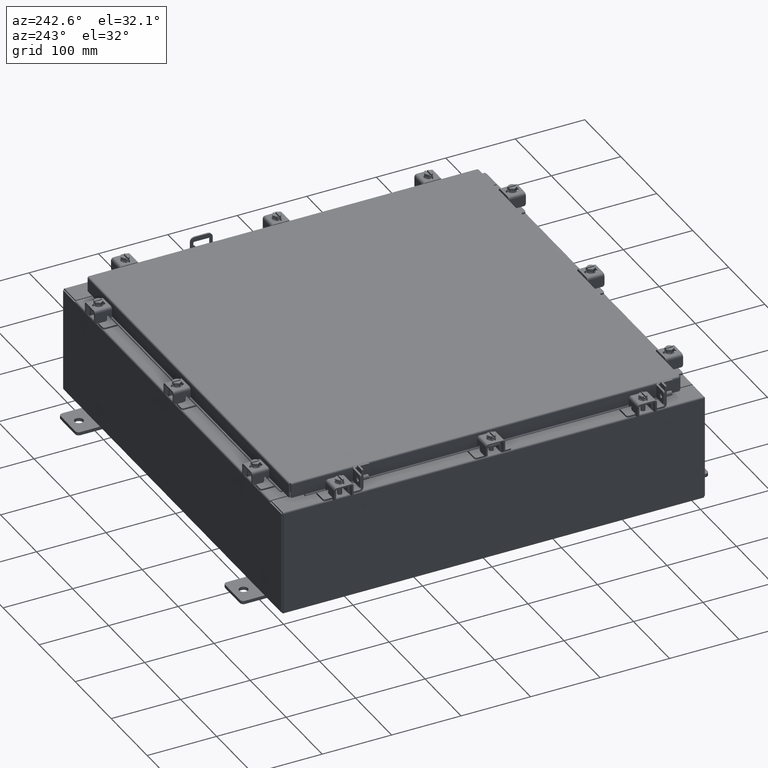
[diagram: clean part render]
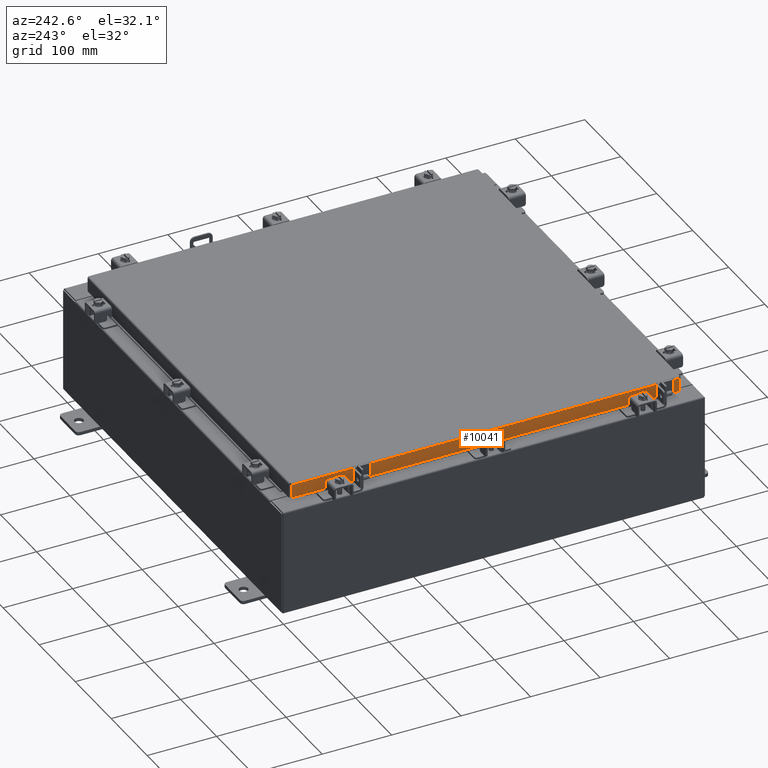
[diagram: same view with one face highlighted and labeled with its STEP entity id]
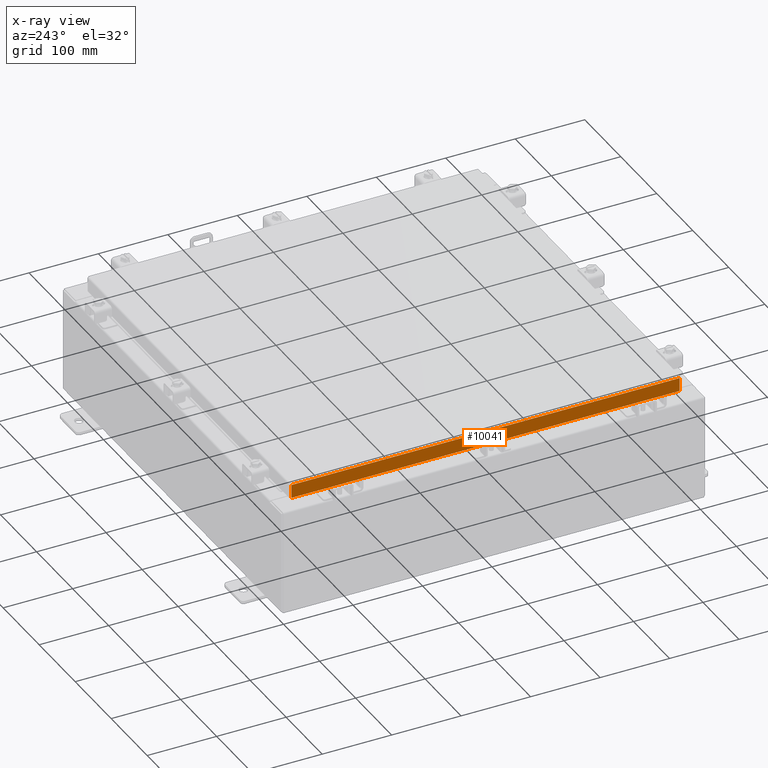
[diagram: x-ray of the same camera — body ghosted, the highlighted face saturated]
A machine part, auxiliary view. The second image highlights one B-rep face of the part: STEP entity #10041.
The next image is the same camera in x-ray: the body ghosted, the highlighted face saturated — about 0% of this face is hidden behind the body in this view.
In plain terms, the highlighted planar face has unit normal (1, 0, -0).
Its self-contained STEP definition (entity closure, byte-faithful):
#916 = LINE ( 'NONE', #7967, #5005 ) ;
#1404 = VECTOR ( 'NONE', #18119, 39.37007874015748100 ) ;
#1466 = ORIENTED_EDGE ( 'NONE', *, *, #3602, .F. ) ;
#1750 = CARTESIAN_POINT ( 'NONE',  ( -11.09399999999999800, -10.25515786437626000, -0.8500000000000020900 ) ) ;
#1959 = VERTEX_POINT ( 'NONE', #20543 ) ;
#2066 = PLANE ( 'NONE',  #6980 ) ;
#2837 = CARTESIAN_POINT ( 'NONE',  ( -11.09400000000000700, -11.09400000000000100, -0.8499999999999999800 ) ) ;
#3466 = LINE ( 'NONE', #2837, #8091 ) ;
#3602 = EDGE_CURVE ( 'NONE', #18702, #6368, #8950, .T. ) ;
#3784 = DIRECTION ( 'NONE',  ( 1.000000000000000000, 3.297150052053607500E-031, -2.818880942772360100E-015 ) ) ;
#5005 = VECTOR ( 'NONE', #21936, 39.37007874015748100 ) ;
#5069 = EDGE_CURVE ( 'NONE', #16119, #18702, #3466, .T. ) ;
#5185 = FACE_OUTER_BOUND ( 'NONE', #19777, .T. ) ;
#6368 = VERTEX_POINT ( 'NONE', #17962 ) ;
#6398 = EDGE_CURVE ( 'NONE', #16034, #1959, #14700, .T. ) ;
#6980 = AXIS2_PLACEMENT_3D ( 'NONE', #14235, #3784, #15986 ) ;
#7141 = ORIENTED_EDGE ( 'NONE', *, *, #6398, .T. ) ;
#7967 = CARTESIAN_POINT ( 'NONE',  ( -11.09400000000000700, -11.09400000000000100, -0.8499999999999999800 ) ) ;
#7981 = CARTESIAN_POINT ( 'NONE',  ( -11.09400000000000300, -11.09400000000000100, -0.08770000000000026400 ) ) ;
#8091 = VECTOR ( 'NONE', #15027, 39.37007874015748100 ) ;
#8947 = CARTESIAN_POINT ( 'NONE',  ( -11.09400000000000700, -11.00515786437626400, -0.8499999999999999800 ) ) ;
#8950 = LINE ( 'NONE', #1750, #18228 ) ;
#9022 = CARTESIAN_POINT ( 'NONE',  ( -11.09399999999999800, -10.25515786437626400, -0.8500000000000020900 ) ) ;
#9219 = ORIENTED_EDGE ( 'NONE', *, *, #15005, .F. ) ;
#9341 = CARTESIAN_POINT ( 'NONE',  ( -11.09400000000000300, -11.00515786437626900, -0.07470000000000015500 ) ) ;
#9432 = CARTESIAN_POINT ( 'NONE',  ( -11.09400000000000300, 11.00515786437626400, 1.081811805491048200E-013 ) ) ;
#10013 = EDGE_CURVE ( 'NONE', #18294, #16119, #19602, .T. ) ;
#10041 = ADVANCED_FACE ( 'NONE', ( #5185 ), #2066, .F. ) ;
#11091 = DIRECTION ( 'NONE',  ( -2.818880942772360100E-015, 6.982962677686267500E-015, -1.000000000000000000 ) ) ;
#11316 = ORIENTED_EDGE ( 'NONE', *, *, #10013, .F. ) ;
#11386 = DIRECTION ( 'NONE',  ( 3.297150052053608400E-031, -1.000000000000000000, -8.987264781119276500E-046 ) ) ;
#12673 = EDGE_CURVE ( 'NONE', #16034, #18294, #20924, .T. ) ;
#13888 = DIRECTION ( 'NONE',  ( -0.0000000000000000000, 1.000000000000000000, -0.0000000000000000000 ) ) ;
#14235 = CARTESIAN_POINT ( 'NONE',  ( -11.09400000000000300, 0.0000000000000000000, 3.168943672650545400E-014 ) ) ;
#14700 = LINE ( 'NONE', #9432, #1404 ) ;
#14977 = VECTOR ( 'NONE', #11091, 39.37007874015748100 ) ;
#15005 = EDGE_CURVE ( 'NONE', #6368, #1959, #916, .T. ) ;
#15027 = DIRECTION ( 'NONE',  ( 4.379057701015054300E-047, 1.000000000000000000, 1.169666303398706800E-016 ) ) ;
#15063 = ORIENTED_EDGE ( 'NONE', *, *, #5069, .F. ) ;
#15986 = DIRECTION ( 'NONE',  ( -2.818880942772360100E-015, 0.0000000000000000000, -1.000000000000000000 ) ) ;
#16034 = VERTEX_POINT ( 'NONE', #17213 ) ;
#16119 = VERTEX_POINT ( 'NONE', #8947 ) ;
#17213 = CARTESIAN_POINT ( 'NONE',  ( -11.09400000000000300, 11.00515786437626400, -0.08770000000000026400 ) ) ;
#17962 = CARTESIAN_POINT ( 'NONE',  ( -11.09399999999999800, 10.25515786437626000, -0.8500000000000020900 ) ) ;
#18106 = CARTESIAN_POINT ( 'NONE',  ( -11.09400000000000300, -11.00515786437626900, -0.08770000000000026400 ) ) ;
#18119 = DIRECTION ( 'NONE',  ( -2.818880942772360100E-015, 6.982962677686267500E-015, -1.000000000000000000 ) ) ;
#18228 = VECTOR ( 'NONE', #13888, 39.37007874015748100 ) ;
#18294 = VERTEX_POINT ( 'NONE', #18106 ) ;
#18702 = VERTEX_POINT ( 'NONE', #9022 ) ;
#19602 = LINE ( 'NONE', #9341, #14977 ) ;
#19777 = EDGE_LOOP ( 'NONE', ( #19977, #7141, #9219, #1466, #15063, #11316 ) ) ;
#19977 = ORIENTED_EDGE ( 'NONE', *, *, #12673, .F. ) ;
#20543 = CARTESIAN_POINT ( 'NONE',  ( -11.09400000000000700, 11.00515786437626900, -0.8499999999999966500 ) ) ;
#20924 = LINE ( 'NONE', #7981, #22031 ) ;
#21936 = DIRECTION ( 'NONE',  ( 4.379057701015054300E-047, 1.000000000000000000, 1.169666303398706800E-016 ) ) ;
#22031 = VECTOR ( 'NONE', #11386, 39.37007874015748100 ) ;